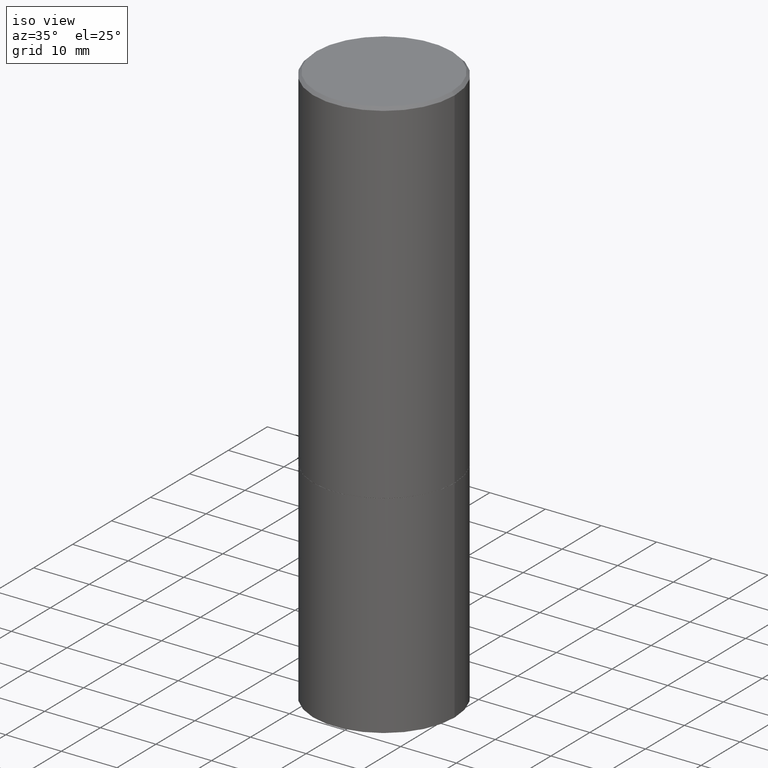
[diagram: clean part render]
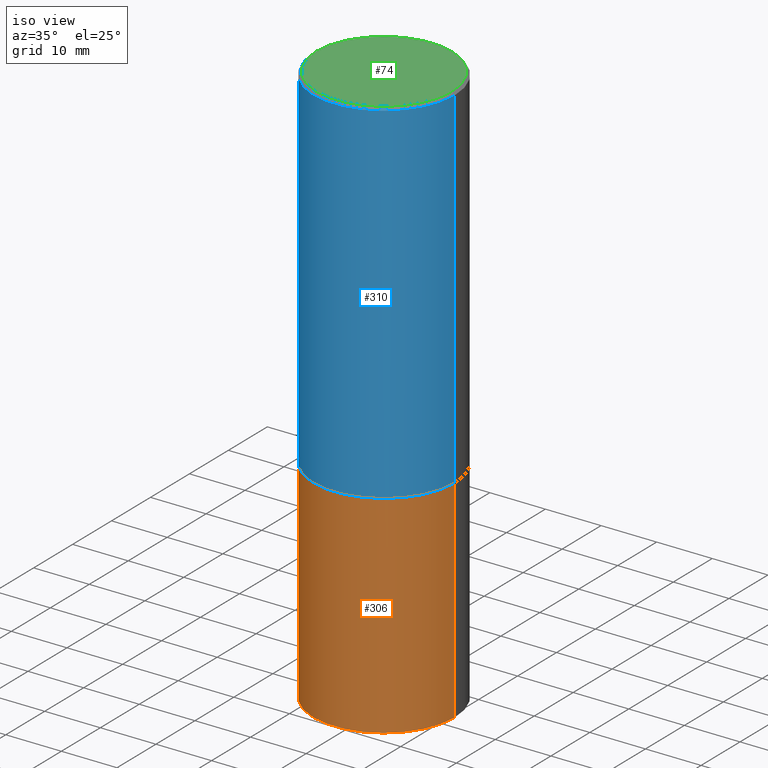
[diagram: same view with three faces highlighted in distinct colors, each labeled with its STEP entity id]
A machine part, iso view with three faces highlighted in distinct colors.
Their STEP definitions:

[orange] entity #306 — the highlighted cylindrical surface (partial cylindrical patch) has radius 12.7 mm, axis along (-0, 0, 1).
#24 = CARTESIAN_POINT ( 'NONE',  ( 0.4999999999999993894, -1.739617435425834338E-14, -4.000000000000000000 ) ) ;
#47 = CARTESIAN_POINT ( 'NONE',  ( -0.4999999999999993894, -1.047444401652945213E-14, -4.000000000000000000 ) ) ;
#54 = ORIENTED_EDGE ( 'NONE', *, *, #104, .F. ) ;
#56 = DIRECTION ( 'NONE',  ( -2.445468806185136877E-29, 3.491481338843145188E-15, 1.000000000000000000 ) ) ;
#59 = LINE ( 'NONE', #145, #344 ) ;
#65 = CYLINDRICAL_SURFACE ( 'NONE', #348, 0.5000000000000000000 ) ;
#95 = DIRECTION ( 'NONE',  ( -2.445468806185136597E-29, 3.491481338843145583E-15, 1.000000000000000000 ) ) ;
#96 = CARTESIAN_POINT ( 'NONE',  ( 0.000000000000000000, 0.000000000000000000, 0.000000000000000000 ) ) ;
#99 = DIRECTION ( 'NONE',  ( 1.000000000000000000, -6.982962677686266711E-15, 4.876176775795935793E-29 ) ) ;
#104 = EDGE_CURVE ( 'NONE', #179, #162, #388, .T. ) ;
#111 = CARTESIAN_POINT ( 'NONE',  ( 0.5000000000000000000, -1.222018468595099830E-14, -2.500000000000000000 ) ) ;
#120 = FACE_OUTER_BOUND ( 'NONE', #216, .T. ) ;
#130 = EDGE_CURVE ( 'NONE', #250, #335, #218, .T. ) ;
#145 = CARTESIAN_POINT ( 'NONE',  ( 0.5000000000000000000, -3.491481338843133355E-15, 2.438088387897967896E-29 ) ) ;
#162 = VERTEX_POINT ( 'NONE', #111 ) ;
#166 = DIRECTION ( 'NONE',  ( 1.000000000000000000, -6.982962677686266711E-15, 0.000000000000000000 ) ) ;
#167 = ORIENTED_EDGE ( 'NONE', *, *, #130, .T. ) ;
#177 = DIRECTION ( 'NONE',  ( -2.445468806185136597E-29, 3.491481338843145583E-15, 1.000000000000000000 ) ) ;
#179 = VERTEX_POINT ( 'NONE', #289 ) ;
#204 = VECTOR ( 'NONE', #56, 39.37007874015748143 ) ;
#216 = EDGE_LOOP ( 'NONE', ( #358, #167, #268, #54 ) ) ;
#218 = CIRCLE ( 'NONE', #323, 0.5000000000000000000 ) ;
#230 = EDGE_CURVE ( 'NONE', #250, #179, #376, .T. ) ;
#250 = VERTEX_POINT ( 'NONE', #47 ) ;
#260 = DIRECTION ( 'NONE',  ( 1.000000000000000000, -6.982962677686269077E-15, 0.000000000000000000 ) ) ;
#265 = AXIS2_PLACEMENT_3D ( 'NONE', #347, #177, #260 ) ;
#268 = ORIENTED_EDGE ( 'NONE', *, *, #314, .T. ) ;
#289 = CARTESIAN_POINT ( 'NONE',  ( -0.5000000000000000000, -7.794600672439723496E-15, -2.500000000000000000 ) ) ;
#294 = CARTESIAN_POINT ( 'NONE',  ( 9.781875224740546387E-29, -1.396592535537258233E-14, -4.000000000000000000 ) ) ;
#296 = DIRECTION ( 'NONE',  ( -2.445468806185136597E-29, 3.491481338843145583E-15, 1.000000000000000000 ) ) ;
#303 = DIRECTION ( 'NONE',  ( -2.445468806185136877E-29, 3.491481338843145188E-15, 1.000000000000000000 ) ) ;
#306 = ADVANCED_FACE ( 'NONE', ( #120 ), #65, .T. ) ;
#314 = EDGE_CURVE ( 'NONE', #335, #162, #59, .T. ) ;
#323 = AXIS2_PLACEMENT_3D ( 'NONE', #294, #296, #166 ) ;
#325 = CARTESIAN_POINT ( 'NONE',  ( -0.5000000000000000000, 3.552713678800500929E-15, -2.459467545127452891E-29 ) ) ;
#335 = VERTEX_POINT ( 'NONE', #24 ) ;
#344 = VECTOR ( 'NONE', #303, 39.37007874015748143 ) ;
#347 = CARTESIAN_POINT ( 'NONE',  ( 6.113672015462842613E-29, -8.728703347107864943E-15, -2.500000000000000000 ) ) ;
#348 = AXIS2_PLACEMENT_3D ( 'NONE', #96, #95, #99 ) ;
#358 = ORIENTED_EDGE ( 'NONE', *, *, #230, .F. ) ;
#376 = LINE ( 'NONE', #325, #204 ) ;
#388 = CIRCLE ( 'NONE', #265, 0.5000000000000000000 ) ;

[blue] entity #310 — the highlighted cylindrical surface (partial cylindrical patch) has radius 12.7 mm, axis along (-0, 0, 1).
#17 = CARTESIAN_POINT ( 'NONE',  ( -0.5000000000000001110, -8.448070674724403070E-16, -2.499000000000000110 ) ) ;
#22 = CIRCLE ( 'NONE', #248, 0.5000000000000001110 ) ;
#27 = CARTESIAN_POINT ( 'NONE',  ( 0.000000000000000000, 0.000000000000000000, 0.000000000000000000 ) ) ;
#51 = DIRECTION ( 'NONE',  ( -2.445468806185136877E-29, 3.491481338843145188E-15, 1.000000000000000000 ) ) ;
#52 = VECTOR ( 'NONE', #51, 39.37007874015748143 ) ;
#57 = VERTEX_POINT ( 'NONE', #126 ) ;
#58 = DIRECTION ( 'NONE',  ( 1.000000000000000000, -6.982962677686266711E-15, 0.000000000000000000 ) ) ;
#63 = ORIENTED_EDGE ( 'NONE', *, *, #292, .T. ) ;
#83 = LINE ( 'NONE', #239, #52 ) ;
#90 = ORIENTED_EDGE ( 'NONE', *, *, #119, .T. ) ;
#113 = CARTESIAN_POINT ( 'NONE',  ( 0.4999999999999997780, -3.500078625662627896E-15, -0.02000000000000011491 ) ) ;
#119 = EDGE_CURVE ( 'NONE', #211, #240, #138, .T. ) ;
#125 = DIRECTION ( 'NONE',  ( 1.000000000000000000, -6.982962677686266711E-15, 4.876176775795935793E-29 ) ) ;
#126 = CARTESIAN_POINT ( 'NONE',  ( -0.4999999999999997780, 3.421651712066268479E-15, -0.02000000000000011491 ) ) ;
#134 = CIRCLE ( 'NONE', #356, 0.4999999999999997780 ) ;
#138 = LINE ( 'NONE', #259, #146 ) ;
#146 = VECTOR ( 'NONE', #208, 39.37007874015748143 ) ;
#150 = ORIENTED_EDGE ( 'NONE', *, *, #176, .F. ) ;
#156 = CARTESIAN_POINT ( 'NONE',  ( 6.111226546656657010E-29, -8.725211865769021935E-15, -2.499000000000000110 ) ) ;
#176 = EDGE_CURVE ( 'NONE', #235, #57, #83, .T. ) ;
#202 = DIRECTION ( 'NONE',  ( -2.445468806185136597E-29, 3.491481338843145583E-15, 1.000000000000000000 ) ) ;
#206 = CARTESIAN_POINT ( 'NONE',  ( 4.890937612370302060E-31, -6.982962677686331052E-17, -0.02000000000000011491 ) ) ;
#208 = DIRECTION ( 'NONE',  ( -2.445468806185136877E-29, 3.491481338843145188E-15, 1.000000000000000000 ) ) ;
#211 = VERTEX_POINT ( 'NONE', #287 ) ;
#220 = ORIENTED_EDGE ( 'NONE', *, *, #221, .F. ) ;
#221 = EDGE_CURVE ( 'NONE', #57, #240, #134, .T. ) ;
#223 = EDGE_LOOP ( 'NONE', ( #150, #63, #90, #220 ) ) ;
#235 = VERTEX_POINT ( 'NONE', #17 ) ;
#239 = CARTESIAN_POINT ( 'NONE',  ( -0.4999999999999999445, 3.552713678800500535E-15, -2.459467545127452611E-29 ) ) ;
#240 = VERTEX_POINT ( 'NONE', #113 ) ;
#244 = CYLINDRICAL_SURFACE ( 'NONE', #297, 0.4999999999999999445 ) ;
#248 = AXIS2_PLACEMENT_3D ( 'NONE', #156, #363, #339 ) ;
#259 = CARTESIAN_POINT ( 'NONE',  ( 0.4999999999999999445, -3.491481338843132961E-15, 2.438088387897967616E-29 ) ) ;
#287 = CARTESIAN_POINT ( 'NONE',  ( 0.5000000000000001110, -1.221669320461215687E-14, -2.499000000000000110 ) ) ;
#292 = EDGE_CURVE ( 'NONE', #235, #211, #22, .T. ) ;
#297 = AXIS2_PLACEMENT_3D ( 'NONE', #27, #365, #125 ) ;
#310 = ADVANCED_FACE ( 'NONE', ( #329 ), #244, .T. ) ;
#329 = FACE_OUTER_BOUND ( 'NONE', #223, .T. ) ;
#339 = DIRECTION ( 'NONE',  ( 1.000000000000000000, -6.982962677686267499E-15, 0.000000000000000000 ) ) ;
#356 = AXIS2_PLACEMENT_3D ( 'NONE', #206, #202, #58 ) ;
#363 = DIRECTION ( 'NONE',  ( -2.445468806185136597E-29, 3.491481338843145583E-15, 1.000000000000000000 ) ) ;
#365 = DIRECTION ( 'NONE',  ( -2.445468806185136597E-29, 3.491481338843145583E-15, 1.000000000000000000 ) ) ;

[green] entity #74 — the highlighted planar face has unit normal (0, -0, -1).
#10 = FACE_OUTER_BOUND ( 'NONE', #378, .T. ) ;
#28 = EDGE_CURVE ( 'NONE', #245, #148, #262, .T. ) ;
#35 = ORIENTED_EDGE ( 'NONE', *, *, #28, .T. ) ;
#69 = ORIENTED_EDGE ( 'NONE', *, *, #359, .T. ) ;
#74 = ADVANCED_FACE ( 'NONE', ( #10 ), #170, .F. ) ;
#78 = AXIS2_PLACEMENT_3D ( 'NONE', #140, #233, #295 ) ;
#107 = DIRECTION ( 'NONE',  ( -1.000000000000000000, 6.982962677686265922E-15, -4.876176775795935793E-29 ) ) ;
#140 = CARTESIAN_POINT ( 'NONE',  ( -1.043851414335219820E-46, 1.490343170380447200E-32, 4.268512490100411279E-18 ) ) ;
#148 = VERTEX_POINT ( 'NONE', #357 ) ;
#149 = DIRECTION ( 'NONE',  ( -2.445468806185136597E-29, 3.491481338843145583E-15, 1.000000000000000000 ) ) ;
#163 = DIRECTION ( 'NONE',  ( 2.438088387897960049E-29, -3.491481338843145188E-15, -1.000000000000000000 ) ) ;
#165 = AXIS2_PLACEMENT_3D ( 'NONE', #317, #163, #107 ) ;
#170 = PLANE ( 'NONE',  #165 ) ;
#205 = AXIS2_PLACEMENT_3D ( 'NONE', #361, #149, #271 ) ;
#233 = DIRECTION ( 'NONE',  ( -2.445468806185136597E-29, 3.491481338843145583E-15, 1.000000000000000000 ) ) ;
#245 = VERTEX_POINT ( 'NONE', #381 ) ;
#249 = CIRCLE ( 'NONE', #205, 0.4799999999999997047 ) ;
#262 = CIRCLE ( 'NONE', #78, 0.4799999999999997047 ) ;
#271 = DIRECTION ( 'NONE',  ( 1.000000000000000000, -6.982962677686267499E-15, 4.876234413615774643E-29 ) ) ;
#295 = DIRECTION ( 'NONE',  ( 1.000000000000000000, -6.982962677686267499E-15, 4.876234413615774643E-29 ) ) ;
#317 = CARTESIAN_POINT ( 'NONE',  ( 3.351822085289405970E-15, 0.4799999999999997047, -1.673776786399658688E-15 ) ) ;
#357 = CARTESIAN_POINT ( 'NONE',  ( -0.4799999999999997047, 3.386736898677837619E-15, 4.268512490076848682E-18 ) ) ;
#359 = EDGE_CURVE ( 'NONE', #148, #245, #249, .T. ) ;
#361 = CARTESIAN_POINT ( 'NONE',  ( -1.043851414335219820E-46, 1.490343170380447200E-32, 4.268512490100411279E-18 ) ) ;
#378 = EDGE_LOOP ( 'NONE', ( #69, #35 ) ) ;
#381 = CARTESIAN_POINT ( 'NONE',  ( 0.4799999999999997047, -3.396558832296480127E-15, 4.268512490124008543E-18 ) ) ;